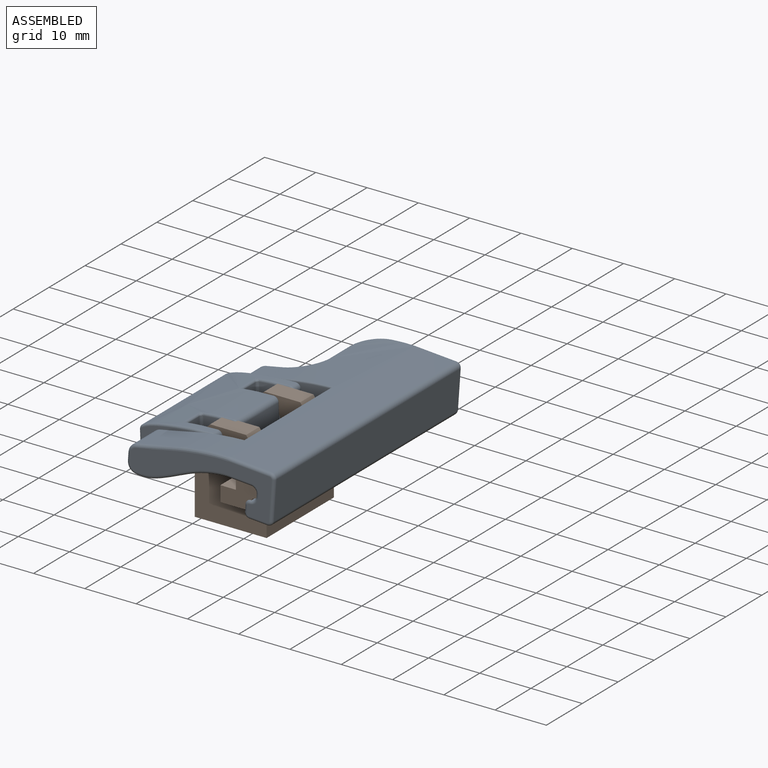
[diagram: assembled view]
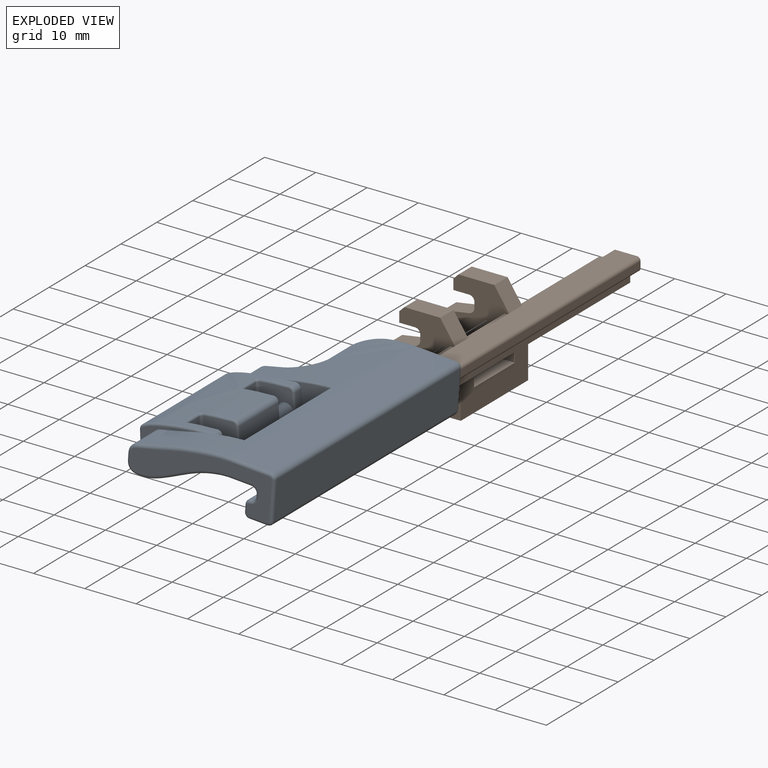
[diagram: exploded view]
GUIDED TOUR — MATED ASSEMBLY WITH SUBASSEMBLIES (Onshape document 080016aa96edbf4f27abe5d6, AutoMate assembly 080016aa96edbf4f27abe5d6_6518897405b09c1fb198cf91_c8db2ddd8b5857a36a0bf81b_default)

This assembly has 3 component occurrences arranged in 2 top-level units: 1 individual components plus 1 subassembly (S0). The tour has two levels: first the top level, where each subassembly is treated as one rigid unit; then each subassembly is toured internally in its own section (nesting deeper than one subassembly level is flattened into its subassembly's section).

Components are labeled P0..P2 across the whole record; subassembly units are labeled S0..S0. A mate is a constraint between two units; its type names the relative motion it leaves free:
  CYLINDRICAL — leaves both rotation about and translation along the listed axis free,
  PLANAR — leaves sliding in the plane through the listed point (normal = the listed direction) and rotation about that normal free,
  REVOLUTE — leaves rotation about the listed axis free (a hinge).
Axis/direction vectors are unit vectors and 'through' points are millimeter coordinates, both in the assembly's world frame.

TOP-LEVEL MATES (between units; each subassembly's internal mates are listed in its own section)
  1. CYLINDRICAL "Cylindrical 1": S0 <-> P1, axis (0.000, -1.000, 0.000) through (4.60, -0.50, 12.50) mm
  2. PLANAR "Planar 1": S0 <-> P1, direction (0.000, -1.000, 0.000) through (18.03, 6.37, 12.60) mm

TOP-LEVEL ASSEMBLY ORDER
  1. S0 — the base component [order heuristic]
  2. P1 [order heuristic]
Order-tag legend:
  [order heuristic] — this assembly is geometrically interlocked (no collision-free removal order exists), so components are listed in mate-graph order; insertion feasibility is not verified.

Of the 3 component occurrences, 1 carries the full construction recipe — the FeatureScript program that regenerates the part's solid from scratch; the rest are supplied as boundary geometry only. Each toured unit is shown spotlighted twice — assembled, then exploded with a leader line back to its socket (green = recipe-attached component, orange = geometry-only, blue = subassembly unit; the rest desaturated gray).
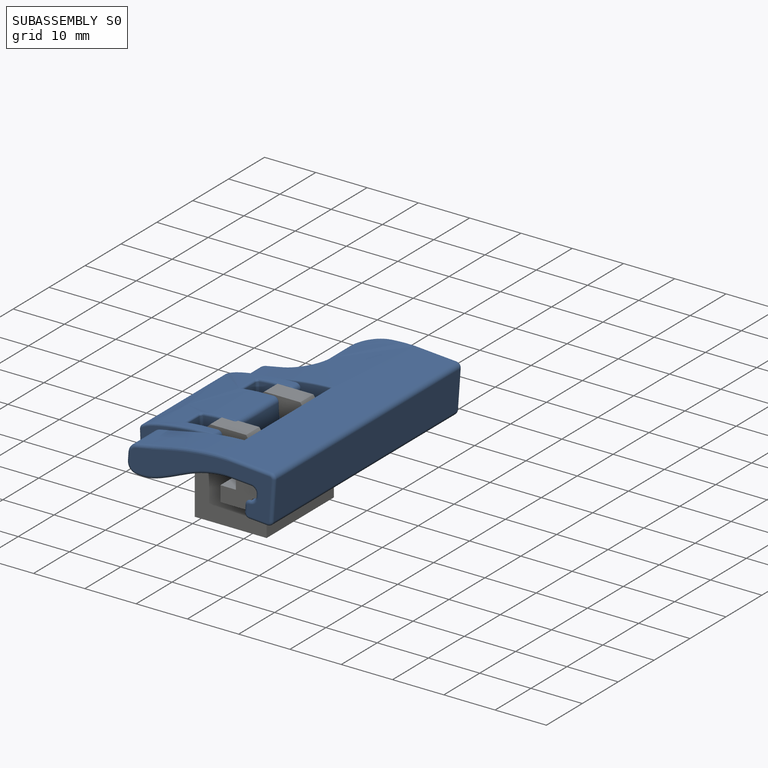
[diagram: subassembly S0 — assembled]
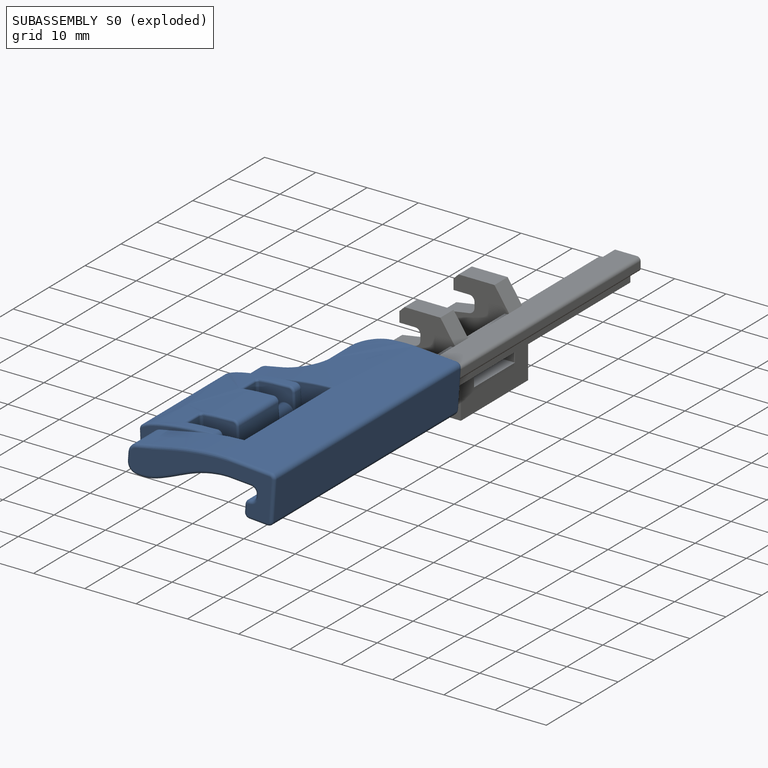
[diagram: subassembly S0 — exploded]
SUBASSEMBLY S0 — 2 components (P0, P2), of which 0 recipe-attached; toured below.
Held by: CYLINDRICAL mate "Cylindrical 1" to P1; PLANAR mate "Planar 1" to P1.
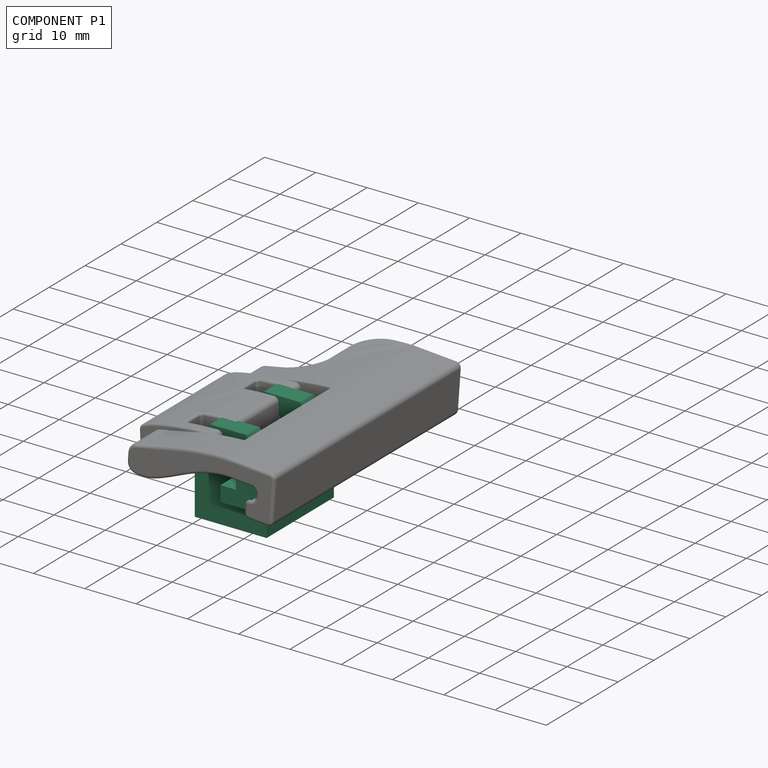
[diagram: component P1 — assembled]
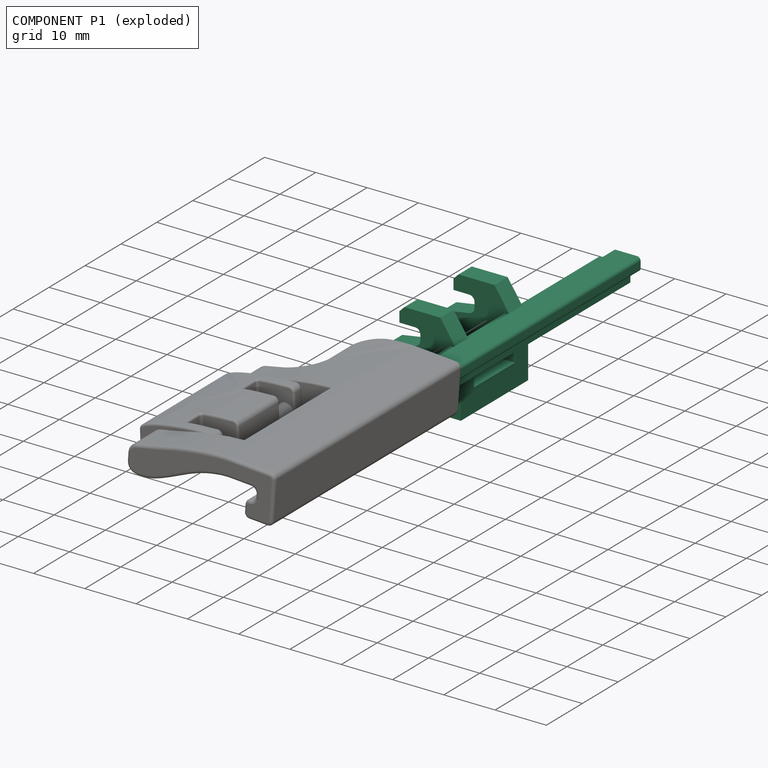
[diagram: component P1 — exploded]
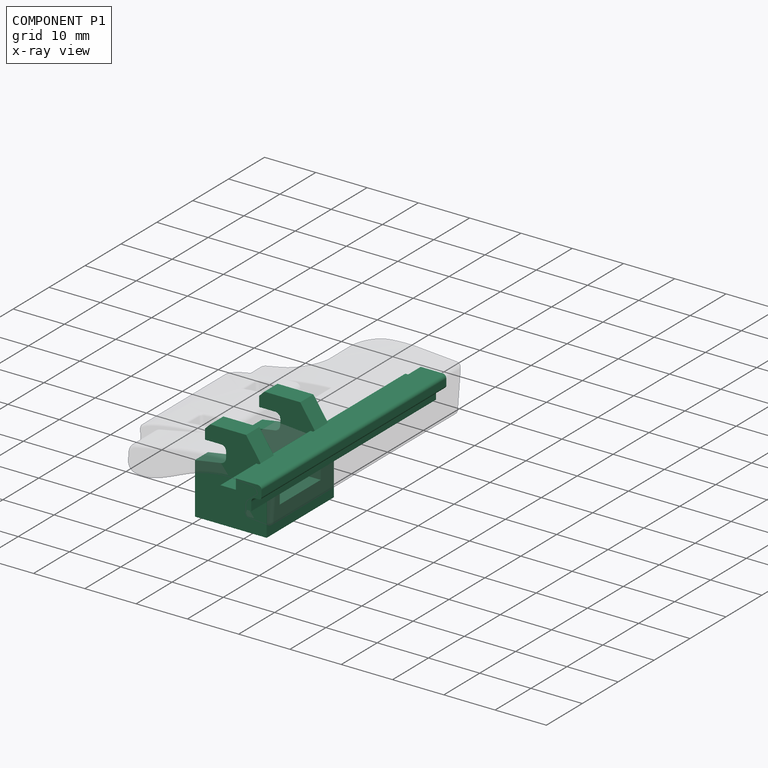
[diagram: component P1 — x-ray view]
COMPONENT P1 — recipe-attached (CADFS 00142253, mesh-verified: the recipe's output STEP matches this component's geometry to below the mesh-comparison resolution (tessellation chordal tolerance ~0.0867 mm)).
Held by: CYLINDRICAL mate "Cylindrical 1" to P0; PLANAR mate "Planar 1" to P0.
Construction recipe (FeatureScript — the CAD program that rebuilds this solid; sketch coordinates are in the units given by the * unit suffixes, e.g. mm):

FeatureScript 1511;
import(path : "onshape/std/geometry.fs", version : "1511.0");
import(path : "onshape/std/common.fs", version : "1511.0");
const mm = millimeter;
const VERTEX = EntityType.VERTEX;
const EDGE = EntityType.EDGE;
const FACE = EntityType.FACE;
const BODY = EntityType.BODY;
function v(x, y){return vector(x, y);}
function OD(order){return orderDisambiguation(order);}
function OSD(set){return originalSetDisambiguation(set);}
function TD(topology){return topologyDisambiguation(topology);}
function TDD(query){return trueDependencyDisambiguation(query);}
function sQuery(a, b, c) {return sketchEntityQuery(a, b, c);}

annotation { "Feature Type Name" : "Feature", "Feature Type Description" : "" }
export const myFeature = defineFeature(function(context is Context, id is Id, definition is map)
    precondition{}
    {
        {
            var Q0;
            Q0=qCreatedBy(makeId("Front.planeOp"),FACE);
            var sketch = newSketch(context, id + "F0", { "sketchPlane" : qUnion([Q0])});
            skLineSegment(sketch, "E0", {"start": v(2, 14.1) * mm, "end": v(2, 17.1) * mm});
            skLineSegment(sketch, "E1", {"start": v(2, 17.1) * mm, "end": v(10, 17.1) * mm});
            skLineSegment(sketch, "E2", {"start": v(10, 17.1) * mm, "end": v(13, 12.6) * mm});
            skLineSegment(sketch, "E3", {"start": v(13, 12.6) * mm, "end": v(14, 12.6) * mm});
            skLineSegment(sketch, "E4", {"start": v(14, 12.6) * mm, "end": v(14, 0) * mm});
            skLineSegment(sketch, "E5", {"start": v(14, 0) * mm, "end": v(0, 0) * mm});
            skLineSegment(sketch, "E6", {"start": v(0, 0) * mm, "end": v(0, 10) * mm});
            skLineSegment(sketch, "E7", {"start": v(0, 10) * mm, "end": v(6.1, 11) * mm});
            skLineSegment(sketch, "E8", {"start": v(6.1, 11) * mm, "end": v(6.1, 13.1) * mm});
            skLineSegment(sketch, "E9", {"start": v(5.1, 14.1) * mm, "end": v(2, 14.1) * mm});
            skPoint(sketch, "E10.visualSharp", {"position": v(6.1, 14.1) * mm});
            skArc(sketch, "E10.filletArc", {"start": v(6.1, 13.1) * mm, "mid": v(5.8, 13.8) * mm, "end": v(5.1, 14.1) * mm});
            skSolve(sketch);
        }
        {
            var Q0;
            Q0 = qSketchRegion(id + "F0", true);
            var Q1;
            Q1=makeQuery(id+"F0.imprint","IMPRINT",FACE,{"disambiguationData":[TD([[makeQuery(id+"F0.imprint","IMPRINT",EDGE,{"derivedFrom":sQuery(id+"F0.wireOp",EDGE,"E0")}),-1.0]])]});
            extrude(context, id + "F1", {"entities" : qUnion([Q0, Q1]), "endBound" : BoundingType.SYMMETRIC, "depth" : 18.75 * mm});
        }
        {
            var Q0;
            {var subQ0=sQuery(id+"F0.wireOp",EDGE,"E8");var subQ1=sQuery(id+"F0.wireOp",EDGE,"E7");Q0=makeQuery(id+"F5.boolean.opBoolean","SPLIT",EDGE,{"disambiguationData":[TD([makeQuery(id+"F5.opExtrude","CAP_FACE",FACE,{"disambiguationData":[OSD([sQuery(id+"F4.wireOp",EDGE,"E11.bottom"),sQuery(id+"F4.wireOp",EDGE,"E11.top"),sQuery(id+"F4.wireOp",EDGE,"E11.left"),sQuery(id+"F4.wireOp",EDGE,"E11.right")])],"isStart":true})])],"derivedFrom":makeQuery(id+"F1.opExtrude","SWEPT_EDGE",EDGE,{"disambiguationData":[OSD([subQ1,subQ0])]})});}
            fillet(context, id + "F2", {"entities" : qUnion([Q0]), "radius" : 1.2 * mm, "tangentPropagation" : true, "allowEdgeOverflow" : false});
        }
        {
            var Q0;
            {var subQ0=sQuery(id+"F0.wireOp",EDGE,"E0");var subQ1=sQuery(id+"F0.wireOp",EDGE,"E1");Q0=makeQuery(id+"F5.boolean.opBoolean","SPLIT",EDGE,{"disambiguationData":[TD([makeQuery(id+"F5.opExtrude","CAP_FACE",FACE,{"disambiguationData":[OSD([sQuery(id+"F4.wireOp",EDGE,"E11.bottom"),sQuery(id+"F4.wireOp",EDGE,"E11.top"),sQuery(id+"F4.wireOp",EDGE,"E11.left"),sQuery(id+"F4.wireOp",EDGE,"E11.right")])],"isStart":true})])],"derivedFrom":makeQuery(id+"F1.opExtrude","SWEPT_EDGE",EDGE,{"disambiguationData":[OSD([subQ0,subQ1])]})});}
            chamfer(context, id + "F3", {"entities" : qUnion([Q0]), "width" : 1 * mm, "tangentPropagation" : true});
        }
        {
            var Q0;
            Q0=qCreatedBy(makeId("Front.planeOp"),FACE);
            var sketch = newSketch(context, id + "F4", { "sketchPlane" : qUnion([Q0])});
            skLineSegment(sketch, "E11.bottom", {"start": v(0, 24.98) * mm, "end": v(29.44, 24.98) * mm});
            skLineSegment(sketch, "E11.top", {"start": v(0, 4.5) * mm, "end": v(29.44, 4.5) * mm});
            skLineSegment(sketch, "E11.left", {"start": v(0, 24.98) * mm, "end": v(0, 4.5) * mm});
            skLineSegment(sketch, "E11.right", {"start": v(29.44, 24.98) * mm, "end": v(29.44, 4.5) * mm});
            skSolve(sketch);
        }
        {
            var Q0;
            Q0=makeQuery(id+"F4.imprint","IMPRINT",FACE,{"disambiguationData":[TD([[makeQuery(id+"F4.imprint","IMPRINT",EDGE,{"derivedFrom":sQuery(id+"F4.wireOp",EDGE,"E11.bottom")}),-1.0]])]});
            extrude(context, id + "F5", {"entities" : qUnion([Q0]), "operationType" : NewBodyOperationType.REMOVE, "endBound" : BoundingType.SYMMETRIC, "oppositeDirection" : true, "depth" : 11.4 * mm});
        }
        {
            var Q0;
            Q0=makeQuery(id+"F1.opExtrude","CAP_FACE",FACE,{"disambiguationData":[OSD([sQuery(id+"F0.wireOp",EDGE,"E0"),sQuery(id+"F0.wireOp",EDGE,"E1"),sQuery(id+"F0.wireOp",EDGE,"E2"),sQuery(id+"F0.wireOp",EDGE,"E3"),sQuery(id+"F0.wireOp",EDGE,"E4"),sQuery(id+"F0.wireOp",EDGE,"E5"),sQuery(id+"F0.wireOp",EDGE,"E6"),sQuery(id+"F0.wireOp",EDGE,"E7"),sQuery(id+"F0.wireOp",EDGE,"E8"),sQuery(id+"F0.wireOp",EDGE,"E9"),sQuery(id+"F0.wireOp",EDGE,"E10.filletArc")])],"isStart":false});
            var sketch = newSketch(context, id + "F6", { "sketchPlane" : qUnion([Q0])});
            skLineSegment(sketch, "E12", {"start": v(18, 9.6) * mm, "end": v(18, 12.1) * mm});
            skLineSegment(sketch, "E13", {"start": v(18, 12.1) * mm, "end": v(20, 12.1) * mm});
            skLineSegment(sketch, "E14", {"start": v(20, 12.1) * mm, "end": v(20, 14.6) * mm});
            skLineSegment(sketch, "E15", {"start": v(20, 14.6) * mm, "end": v(15, 14.6) * mm});
            skLineSegment(sketch, "E16", {"start": v(15, 14.6) * mm, "end": v(15, 9.6) * mm, "construction": true});
            skLineSegment(sketch, "E17", {"start": v(15, 9.6) * mm, "end": v(18, 9.6) * mm});
            skLineSegment(sketch, "E18", {"start": v(15, 9.6) * mm, "end": v(12, 9.6) * mm});
            skLineSegment(sketch, "E19", {"start": v(12, 9.6) * mm, "end": v(12, 12.6) * mm});
            skLineSegment(sketch, "E20", {"start": v(12, 12.6) * mm, "end": v(15, 12.6) * mm});
            skLineSegment(sketch, "E21", {"start": v(15, 12.6) * mm, "end": v(15, 14.6) * mm});
            skSolve(sketch);
        }
        {
            var Q0;
            Q0 = qSketchRegion(id + "F6", true);
            extrude(context, id + "F7", {"entities" : qUnion([Q0]), "operationType" : NewBodyOperationType.ADD, "depth" : 10 * mm, "hasSecondDirection" : true, "secondDirectionOppositeDirection" : true, "secondDirectionDepth" : 41.5 * mm});
        }
        {
            var Q0;
            Q0=makeQuery(id+"F7.opExtrude","SWEPT_EDGE",EDGE,{"disambiguationData":[OSD([sQuery(id+"F6.wireOp",EDGE,"E14"),sQuery(id+"F6.wireOp",EDGE,"E15")])]});
            fillet(context, id + "F8", {"entities" : qUnion([Q0]), "radius" : 0.7 * mm, "tangentPropagation" : true, "allowEdgeOverflow" : false});
        }
        {
            var Q0;
            Q0=makeQuery(id+"F7.opExtrude","SWEPT_EDGE",EDGE,{"disambiguationData":[OSD([sQuery(id+"F6.wireOp",EDGE,"E13"),sQuery(id+"F6.wireOp",EDGE,"E14")])]});
            fillet(context, id + "F9", {"entities" : qUnion([Q0]), "radius" : 0.5 * mm, "tangentPropagation" : true, "allowEdgeOverflow" : false});
        }
        {
            var Q0;
            Q0=makeQuery(id+"F7.opExtrude","SWEPT_EDGE",EDGE,{"disambiguationData":[OSD([sQuery(id+"F6.wireOp",EDGE,"E12"),sQuery(id+"F6.wireOp",EDGE,"E13")])]});
            fillet(context, id + "F10", {"entities" : qUnion([Q0]), "radius" : 0.9 * mm, "tangentPropagation" : true, "allowEdgeOverflow" : false});
        }
    });
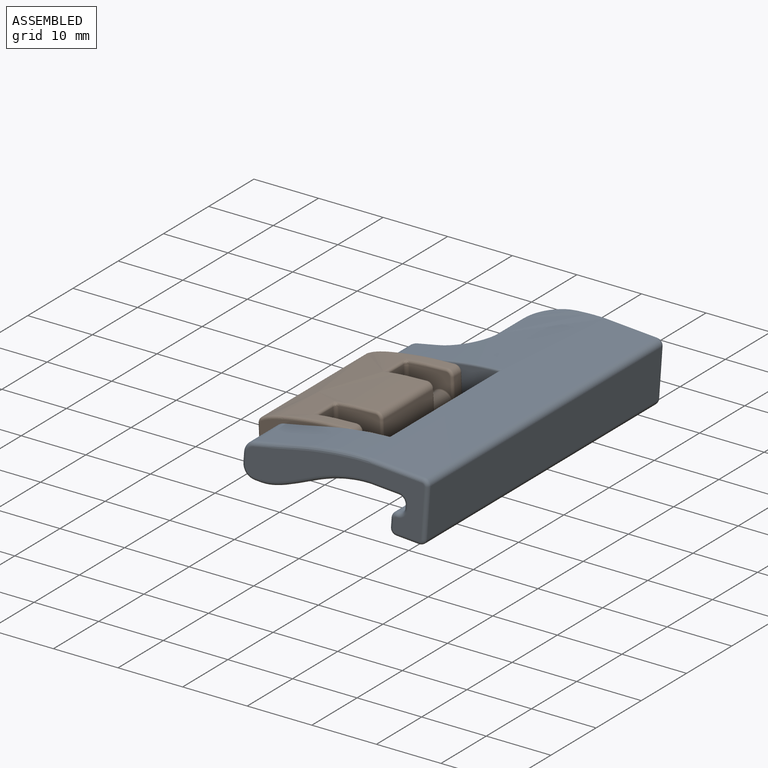
[diagram: subassembly S0 — assembled view]
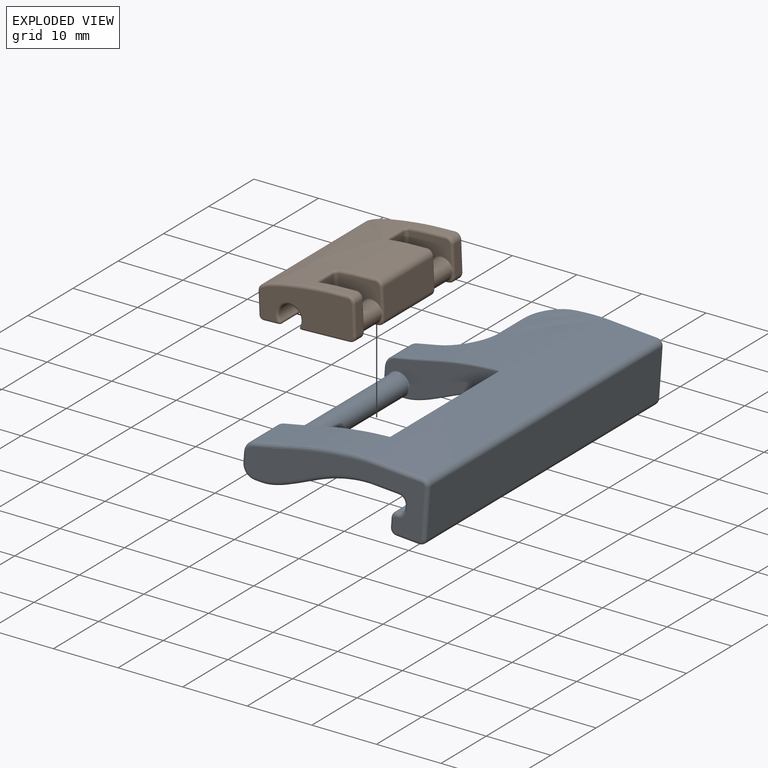
[diagram: subassembly S0 — exploded view]
SUBASSEMBLY S0 TOUR — 2 components, shown here in isolation at its own camera.

INTERNAL MATES
  1. REVOLUTE "Revolute 1": P0 <-> P2, axis (0.000, -1.000, 0.000) through (-3.78, -0.50, 11.82) mm
  2. REVOLUTE "Revolute 1": P0 <-> P2, axis (0.000, -1.000, 0.000) through (-3.78, -0.50, 11.82) mm

ASSEMBLY ORDER (within the subassembly)
  1. P0 — the base component [order verified]
  2. P2 [order verified]
Order-tag legend:
  [order verified] — this step's position reverses a verified removal order: the component was checked to insert without passing through the ones already placed.
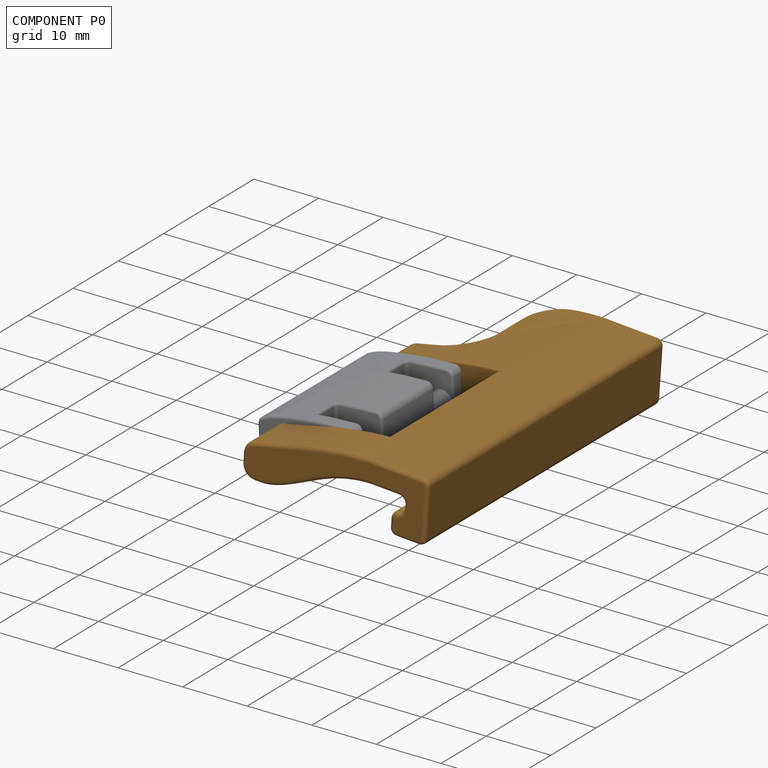
[diagram: component P0 — assembled]
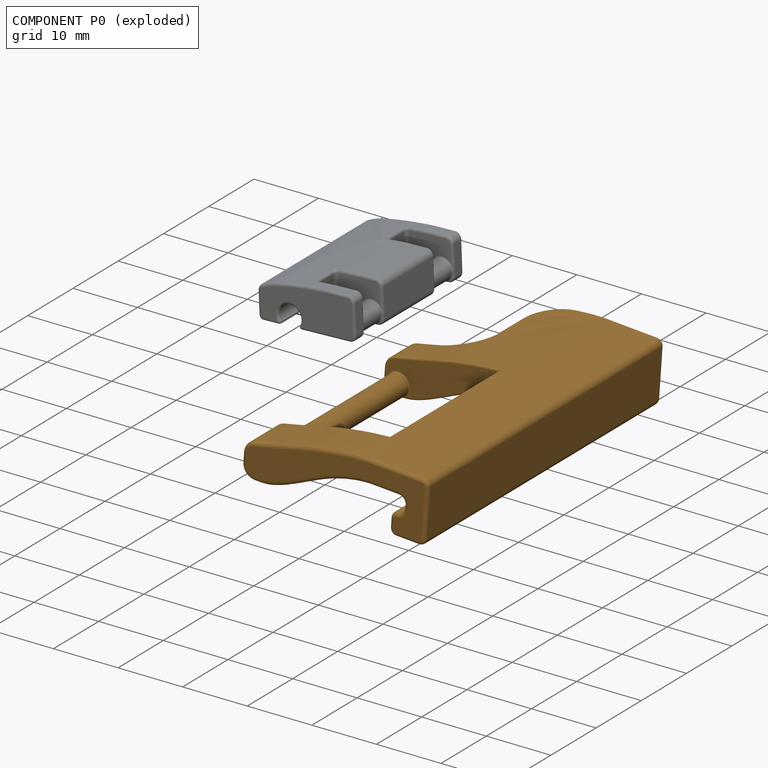
[diagram: component P0 — exploded]
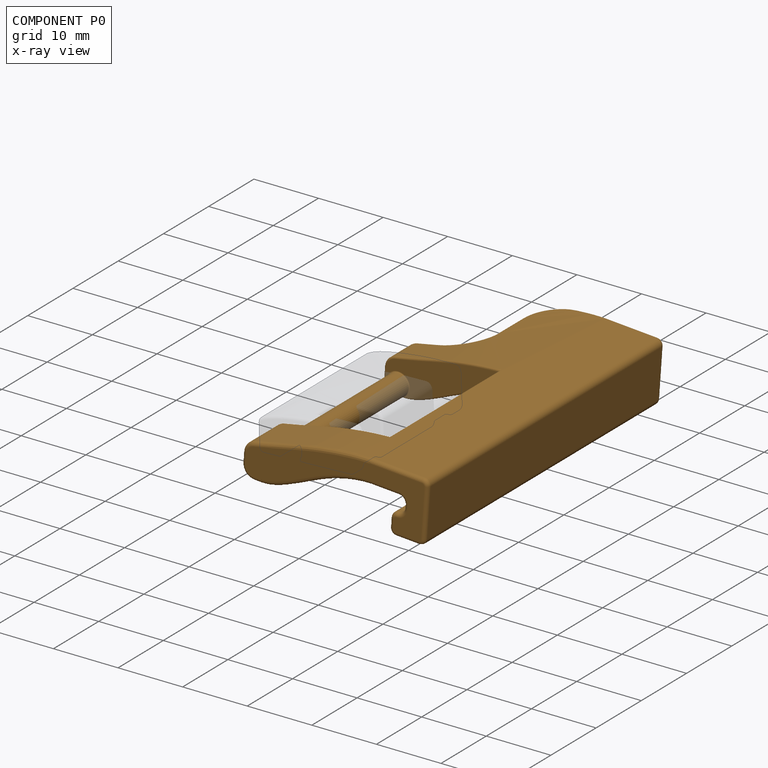
[diagram: component P0 — x-ray view]
COMPONENT P0 — geometry summary (no construction recipe available for this part):
  bounding box: 52.3 x 30.0 x 9.5 mm
  B-rep topology: 1 solid, 118 faces, 556 edges
  volume: 5226 mm^3 (35% of its bounding box)
Held by: REVOLUTE mate "Revolute 1" to P2; REVOLUTE mate "Revolute 1" to P2.
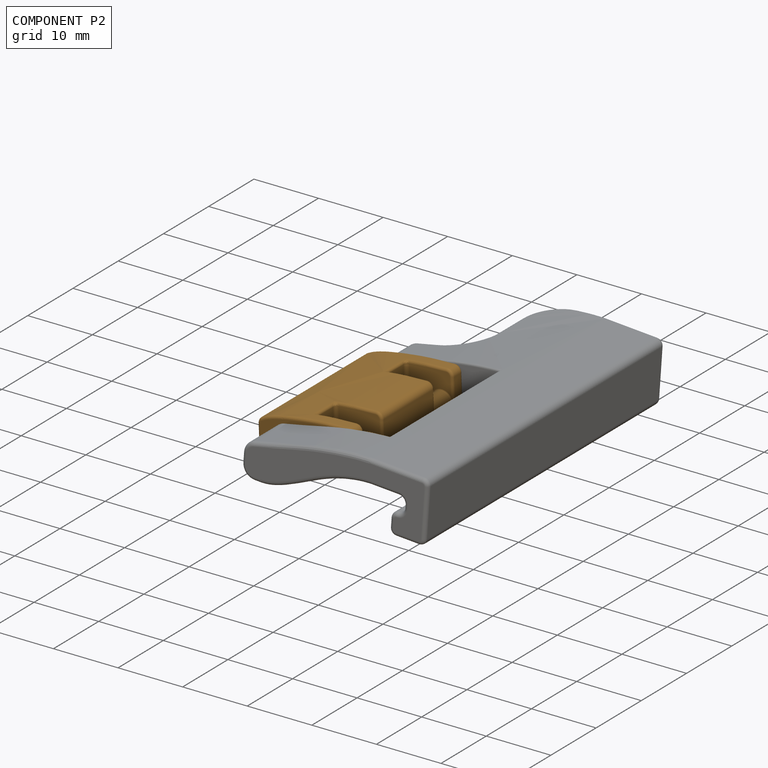
[diagram: component P2 — assembled]
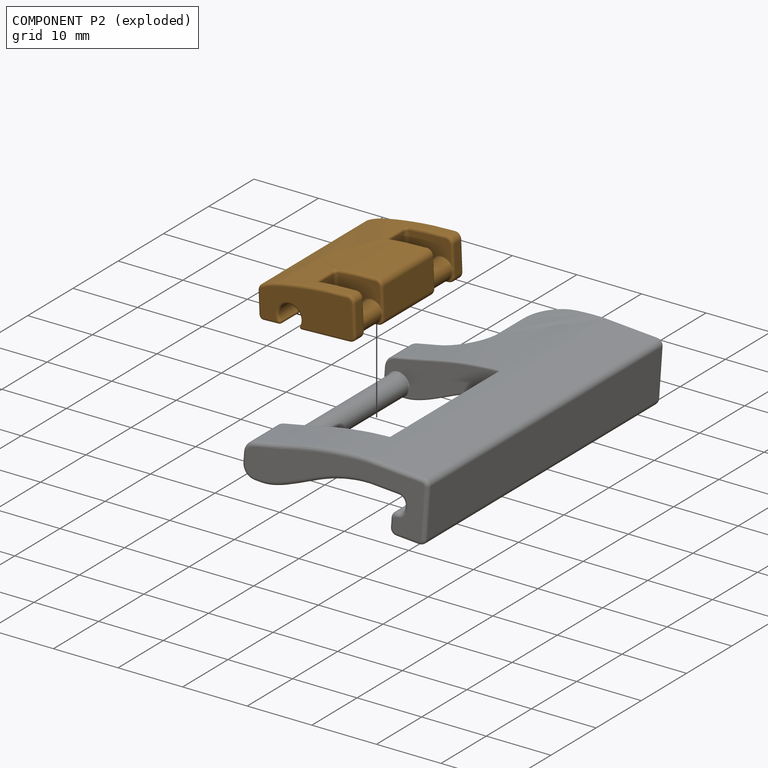
[diagram: component P2 — exploded]
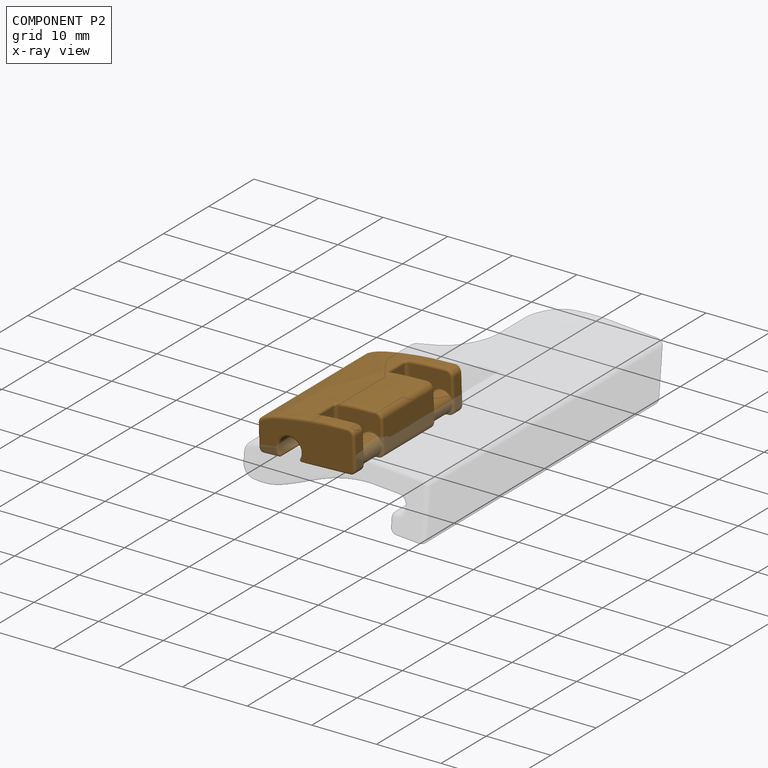
[diagram: component P2 — x-ray view]
COMPONENT P2 — geometry summary (no construction recipe available for this part):
  bounding box: 24.0 x 15.2 x 6.7 mm
  B-rep topology: 1 solid, 149 faces, 686 edges
  volume: 1652 mm^3 (68% of its bounding box)
Held by: REVOLUTE mate "Revolute 1" to P0; REVOLUTE mate "Revolute 1" to P0.
PROVENANCE & LICENSES
Assembly (occurrences, transforms, mates, per-part STEP geometry): AutoMate dataset, Zenodo record 7776208, CC0.
Construction recipes: CADFS (HuggingFace VladPyatov/CADFS, CC-BY-4.0, layered over the ABC dataset), FeatureScript reconstruction programs keyed by ABC model id.
Join: ABC meta listings map ABC model id -> Onshape documentId; within a shared document, parts are matched by geometric signature (bounding-box dims + volume at 0.1% relative tolerance, exact B-rep face/solid counts).
Verification: 1 of this assembly's 3 components carries a recipe attachment, and every attachment is mesh-verified: the CADFS STEP and the AutoMate member STEP were compared as meshes in their shared local frame (symmetric sampled-point-to-mesh distance); worst across the 1 attachment: below the mesh-comparison resolution (tessellation chordal tolerance ~0.0867 mm) on a 58 mm part.
Renders: orthographic iso camera (az 35 / el 25); the floor grid conveys scale (grid pitch printed in each image; no ruler). In the exploded view each component is displaced by its stored offset vector: the offsets alone carry the explosion direction (mate normal/axis signs are not orientation cues and do not encode it), and separation distances are assigned per mate-chain, not proportionally to assembly-order depth.
